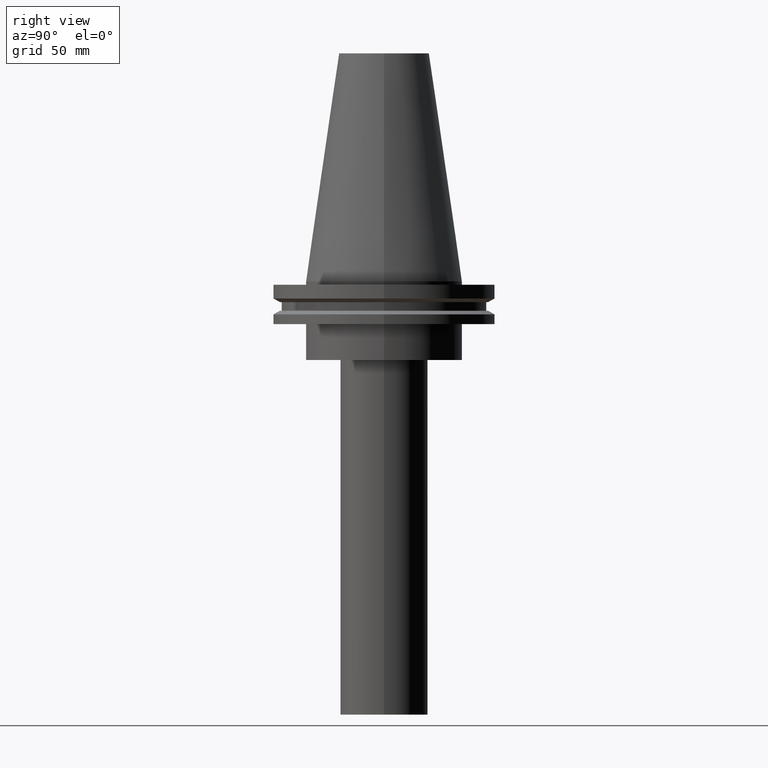
[diagram: clean part render]
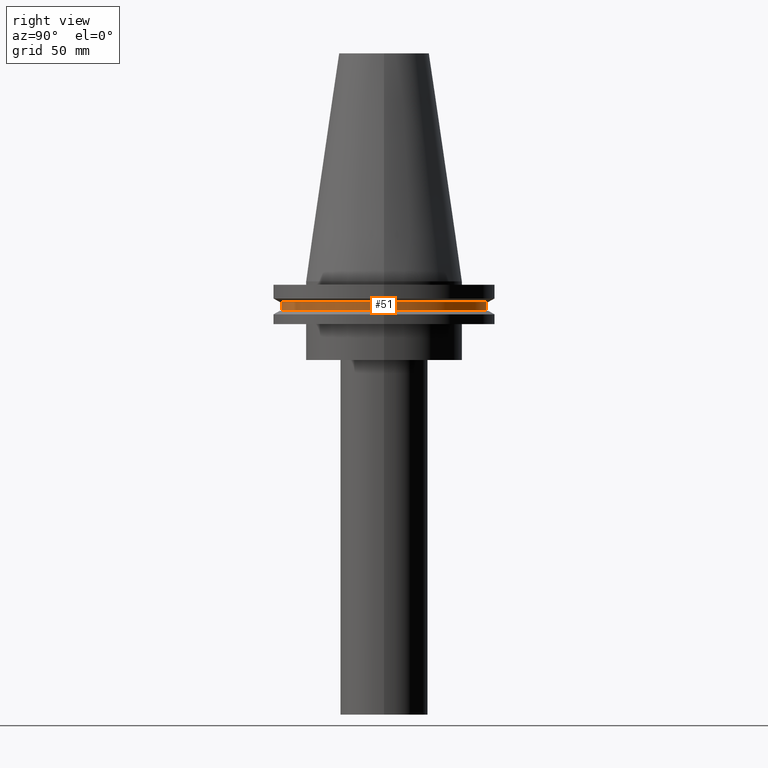
[diagram: same view with one face highlighted and labeled with its STEP entity id]
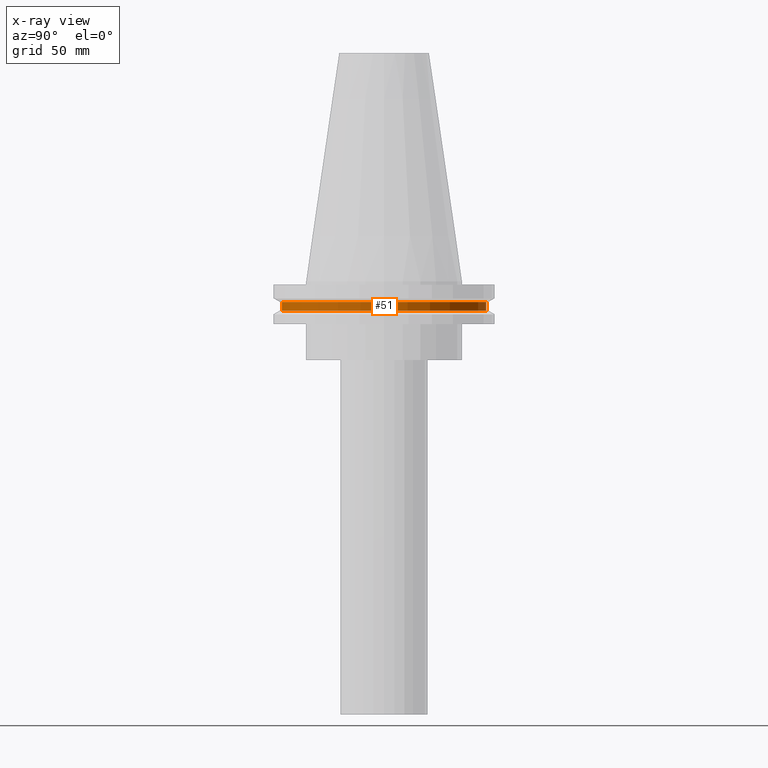
[diagram: x-ray of the same camera — body ghosted, the highlighted face saturated]
A machine part, right view. The second image highlights one B-rep face of the part: STEP entity #51.
The next image is the same camera in x-ray: the body ghosted, the highlighted face saturated — about 0% of this face is hidden behind the body in this view.
In plain terms, the highlighted cylindrical surface (bore or boss wall) has radius 45.645 mm, axis along (-0, -0, 1).
Its self-contained STEP definition (entity closure, byte-faithful):
#6 = DIRECTION ( 'NONE',  ( 1.000000000000000000, 0.000000000000000000, 0.000000000000000000 ) ) ;
#7 = EDGE_LOOP ( 'NONE', ( #179 ) ) ;
#15 = DIRECTION ( 'NONE',  ( -0.000000000000000000, -0.000000000000000000, 1.000000000000000000 ) ) ;
#28 = EDGE_CURVE ( 'NONE', #354, #354, #165, .T. ) ;
#40 = CARTESIAN_POINT ( 'NONE',  ( 0.000000000000000000, 0.000000000000000000, -13.05499999999999794 ) ) ;
#46 = DIRECTION ( 'NONE',  ( 1.000000000000000000, 0.000000000000000000, 0.000000000000000000 ) ) ;
#50 = AXIS2_PLACEMENT_3D ( 'NONE', #40, #280, #6 ) ;
#51 = ADVANCED_FACE ( 'NONE', ( #380, #348 ), #255, .T. ) ;
#75 = DIRECTION ( 'NONE',  ( -0.000000000000000000, -0.000000000000000000, 1.000000000000000000 ) ) ;
#78 = CARTESIAN_POINT ( 'NONE',  ( 45.64500000000000313, 0.000000000000000000, -9.204999999999991189 ) ) ;
#80 = CARTESIAN_POINT ( 'NONE',  ( 45.64500000000000313, 0.000000000000000000, -13.05499999999999794 ) ) ;
#140 = CARTESIAN_POINT ( 'NONE',  ( 0.000000000000000000, 0.000000000000000000, -9.204999999999991189 ) ) ;
#165 = CIRCLE ( 'NONE', #387, 45.64500000000000313 ) ;
#178 = CIRCLE ( 'NONE', #50, 45.64500000000000313 ) ;
#179 = ORIENTED_EDGE ( 'NONE', *, *, #28, .F. ) ;
#184 = EDGE_CURVE ( 'NONE', #382, #382, #178, .T. ) ;
#198 = DIRECTION ( 'NONE',  ( 1.000000000000000000, 0.000000000000000000, 0.000000000000000000 ) ) ;
#255 = CYLINDRICAL_SURFACE ( 'NONE', #367, 45.64500000000000313 ) ;
#280 = DIRECTION ( 'NONE',  ( -0.000000000000000000, -0.000000000000000000, 1.000000000000000000 ) ) ;
#284 = EDGE_LOOP ( 'NONE', ( #344 ) ) ;
#324 = CARTESIAN_POINT ( 'NONE',  ( 0.000000000000000000, 0.000000000000000000, 101.5999999999999943 ) ) ;
#344 = ORIENTED_EDGE ( 'NONE', *, *, #184, .T. ) ;
#348 = FACE_OUTER_BOUND ( 'NONE', #284, .T. ) ;
#354 = VERTEX_POINT ( 'NONE', #78 ) ;
#367 = AXIS2_PLACEMENT_3D ( 'NONE', #324, #75, #46 ) ;
#380 = FACE_OUTER_BOUND ( 'NONE', #7, .T. ) ;
#382 = VERTEX_POINT ( 'NONE', #80 ) ;
#387 = AXIS2_PLACEMENT_3D ( 'NONE', #140, #15, #198 ) ;